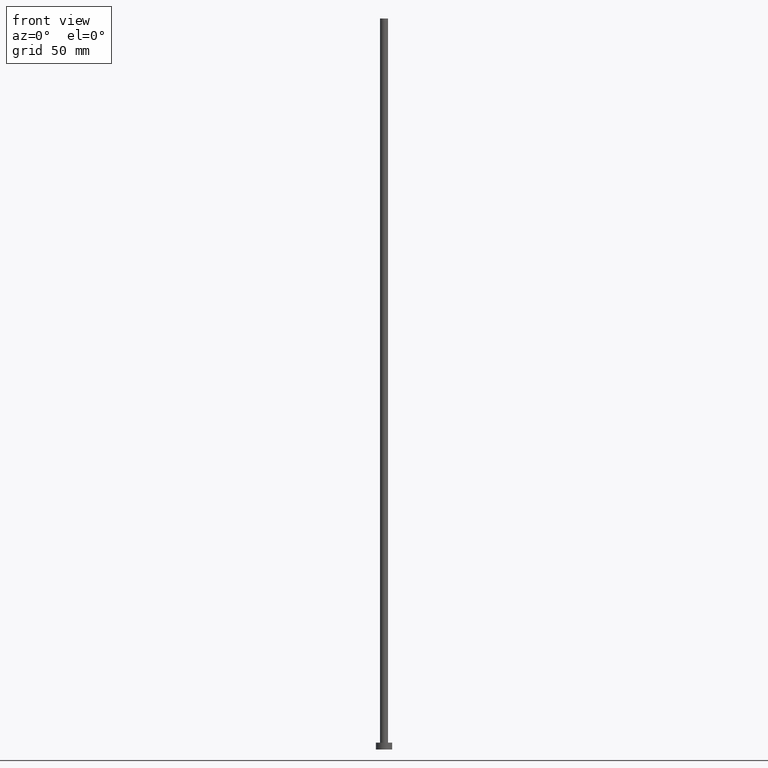
[diagram: clean part render]
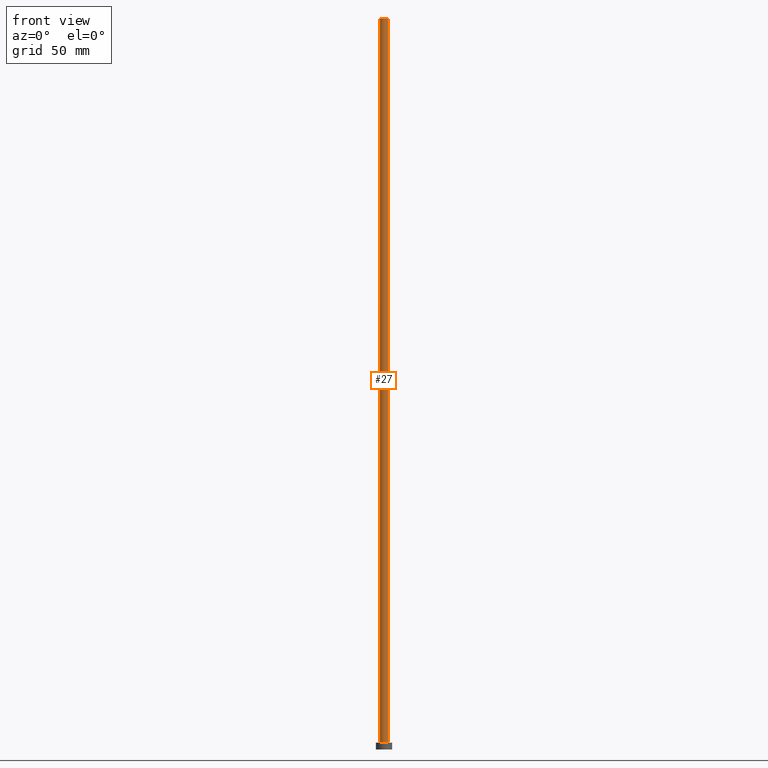
[diagram: same view with one face highlighted and labeled with its STEP entity id]
A machine part, front view. The second image highlights one B-rep face of the part: STEP entity #27.
In plain terms, the highlighted cylindrical surface (edge-blend (fillet) strip) has radius 1.75 mm, axis along (-0, -0, -1).
Its self-contained STEP definition (entity closure, byte-faithful):
#4 = EDGE_CURVE ( 'NONE', #36, #141, #86, .T. ) ;
#19 = CARTESIAN_POINT ( 'NONE',  ( -1.750000000000000000, 0.000000000000000000, 315.0000000000000000 ) ) ;
#20 = CARTESIAN_POINT ( 'NONE',  ( -1.750000000000000000, 0.000000000000000000, 3.000000000000000000 ) ) ;
#27 = ADVANCED_FACE ( 'NONE', ( #167 ), #186, .T. ) ;
#32 = DIRECTION ( 'NONE',  ( 0.000000000000000000, 0.000000000000000000, 1.000000000000000000 ) ) ;
#33 = DIRECTION ( 'NONE',  ( 0.000000000000000000, 0.000000000000000000, 1.000000000000000000 ) ) ;
#36 = VERTEX_POINT ( 'NONE', #20 ) ;
#43 = DIRECTION ( 'NONE',  ( -1.000000000000000000, 0.000000000000000000, 0.000000000000000000 ) ) ;
#45 = AXIS2_PLACEMENT_3D ( 'NONE', #171, #247, #43 ) ;
#54 = ORIENTED_EDGE ( 'NONE', *, *, #4, .T. ) ;
#62 = EDGE_LOOP ( 'NONE', ( #173, #233, #170, #54 ) ) ;
#63 = VECTOR ( 'NONE', #200, 1000.000000000000000 ) ;
#73 = DIRECTION ( 'NONE',  ( 1.000000000000000000, 0.000000000000000000, 0.000000000000000000 ) ) ;
#82 = EDGE_CURVE ( 'NONE', #207, #141, #137, .T. ) ;
#84 = EDGE_CURVE ( 'NONE', #238, #207, #190, .T. ) ;
#86 = CIRCLE ( 'NONE', #120, 1.750000000000000000 ) ;
#101 = LINE ( 'NONE', #219, #63 ) ;
#106 = EDGE_CURVE ( 'NONE', #238, #36, #101, .T. ) ;
#113 = DIRECTION ( 'NONE',  ( 1.000000000000000000, 0.000000000000000000, 0.000000000000000000 ) ) ;
#120 = AXIS2_PLACEMENT_3D ( 'NONE', #215, #32, #73 ) ;
#137 = LINE ( 'NONE', #254, #230 ) ;
#141 = VERTEX_POINT ( 'NONE', #166 ) ;
#145 = CARTESIAN_POINT ( 'NONE',  ( 1.750000000000000000, 2.143131898507868297E-16, 315.0000000000000000 ) ) ;
#166 = CARTESIAN_POINT ( 'NONE',  ( 1.750000000000000000, 2.143131898507868297E-16, 3.000000000000000000 ) ) ;
#167 = FACE_OUTER_BOUND ( 'NONE', #62, .T. ) ;
#170 = ORIENTED_EDGE ( 'NONE', *, *, #106, .T. ) ;
#171 = CARTESIAN_POINT ( 'NONE',  ( 0.000000000000000000, 0.000000000000000000, 315.0000000000000000 ) ) ;
#173 = ORIENTED_EDGE ( 'NONE', *, *, #82, .F. ) ;
#174 = DIRECTION ( 'NONE',  ( -0.000000000000000000, -0.000000000000000000, -1.000000000000000000 ) ) ;
#186 = CYLINDRICAL_SURFACE ( 'NONE', #45, 1.750000000000000000 ) ;
#190 = CIRCLE ( 'NONE', #222, 1.750000000000000000 ) ;
#200 = DIRECTION ( 'NONE',  ( -0.000000000000000000, -0.000000000000000000, -1.000000000000000000 ) ) ;
#207 = VERTEX_POINT ( 'NONE', #145 ) ;
#215 = CARTESIAN_POINT ( 'NONE',  ( 0.000000000000000000, 0.000000000000000000, 3.000000000000000000 ) ) ;
#219 = CARTESIAN_POINT ( 'NONE',  ( -1.750000000000000000, 0.000000000000000000, 315.0000000000000000 ) ) ;
#222 = AXIS2_PLACEMENT_3D ( 'NONE', #229, #33, #113 ) ;
#229 = CARTESIAN_POINT ( 'NONE',  ( 0.000000000000000000, 0.000000000000000000, 315.0000000000000000 ) ) ;
#230 = VECTOR ( 'NONE', #174, 1000.000000000000000 ) ;
#233 = ORIENTED_EDGE ( 'NONE', *, *, #84, .F. ) ;
#238 = VERTEX_POINT ( 'NONE', #19 ) ;
#247 = DIRECTION ( 'NONE',  ( -0.000000000000000000, -0.000000000000000000, -1.000000000000000000 ) ) ;
#254 = CARTESIAN_POINT ( 'NONE',  ( 1.750000000000000000, 2.143131898507868297E-16, 315.0000000000000000 ) ) ;